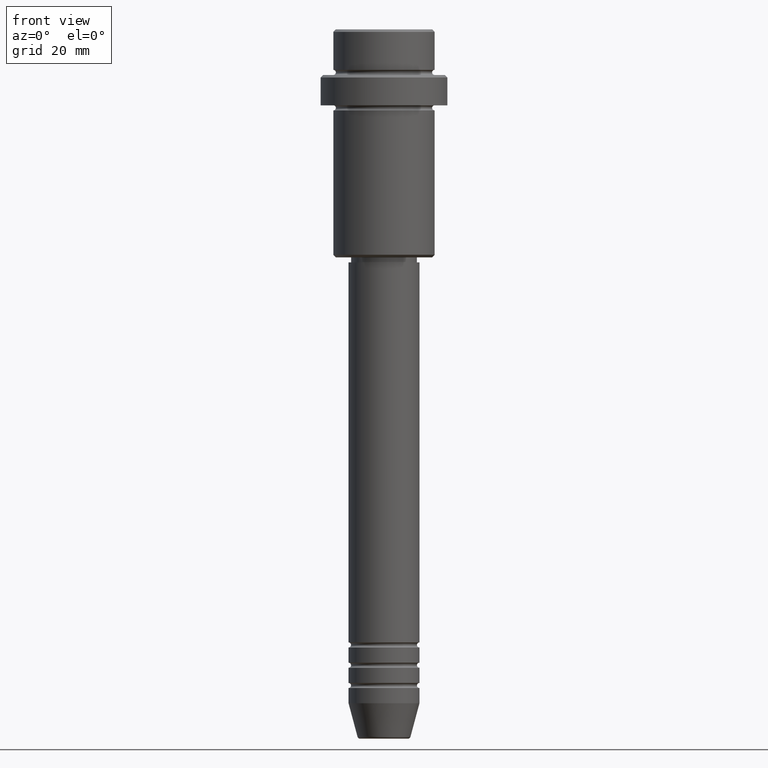
[diagram: clean part render]
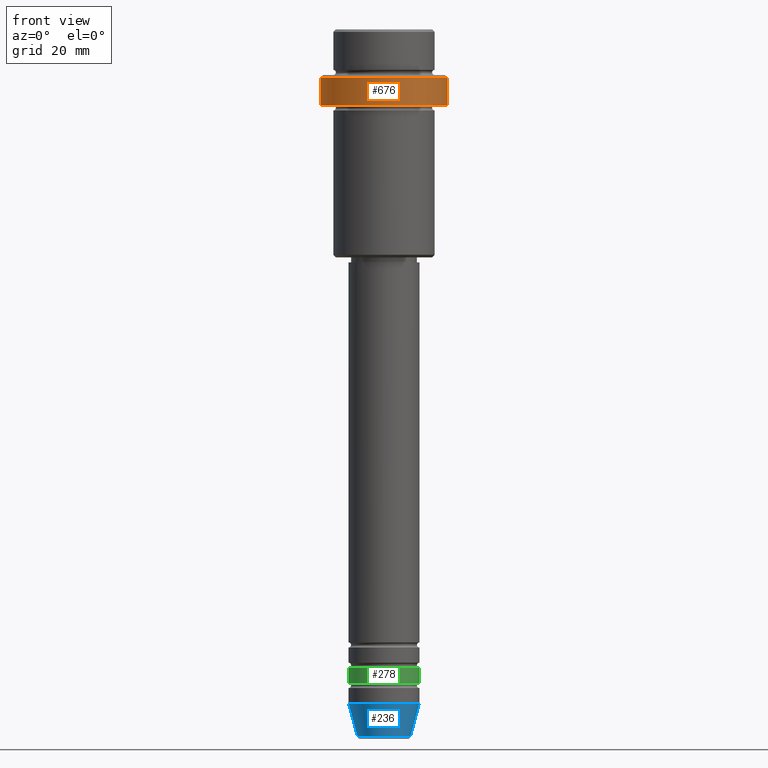
[diagram: same view with three faces highlighted in distinct colors, each labeled with its STEP entity id]
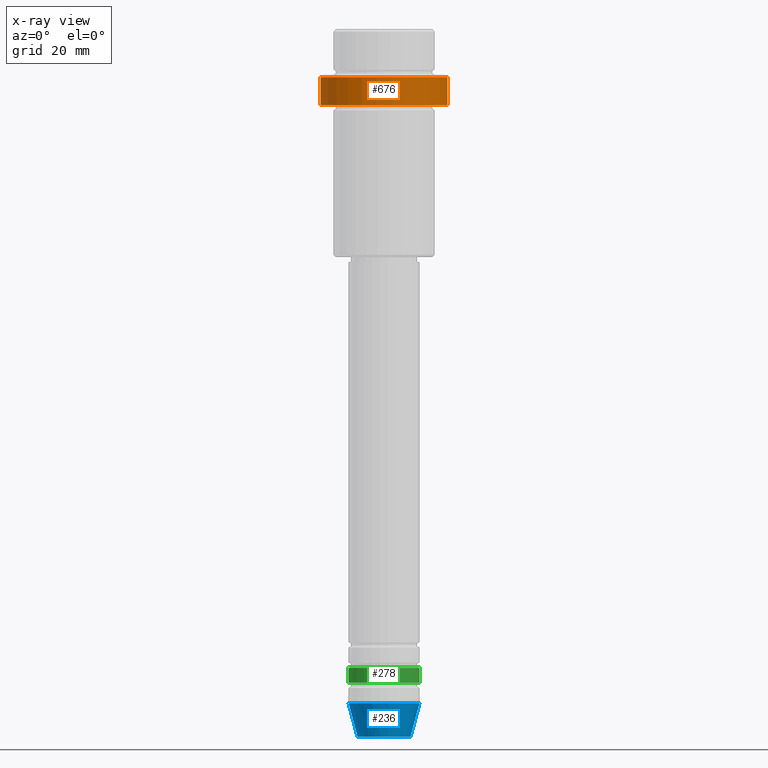
[diagram: x-ray of the same camera — body ghosted, the three highlighted faces saturated]
A machine part, front view with three faces highlighted in distinct colors.
The next image is the same camera in x-ray (body ghosted, the three faces saturated) — at least one of them is partly hidden behind the body in this view.
Their STEP definitions:

[orange] entity #676 — the highlighted cylindrical surface (partial cylindrical patch) has radius 12.5 mm, axis along (-0, -0, 1).
#21 = VERTEX_POINT ( 'NONE', #561 ) ;
#74 = CARTESIAN_POINT ( 'NONE',  ( -12.50000000000000000, 1.530808498934191521E-15, 0.000000000000000000 ) ) ;
#133 = DIRECTION ( 'NONE',  ( 0.000000000000000000, 0.000000000000000000, -1.000000000000000000 ) ) ;
#146 = ORIENTED_EDGE ( 'NONE', *, *, #505, .T. ) ;
#181 = ORIENTED_EDGE ( 'NONE', *, *, #310, .F. ) ;
#198 = CIRCLE ( 'NONE', #1269, 12.50000000000000000 ) ;
#205 = CARTESIAN_POINT ( 'NONE',  ( 12.50000000000000000, 0.000000000000000000, -9.500000000000031974 ) ) ;
#215 = EDGE_CURVE ( 'NONE', #621, #312, #397, .T. ) ;
#221 = VECTOR ( 'NONE', #1378, 1000.000000000000000 ) ;
#257 = FACE_OUTER_BOUND ( 'NONE', #915, .T. ) ;
#275 = DIRECTION ( 'NONE',  ( 1.000000000000000000, 0.000000000000000000, 0.000000000000000000 ) ) ;
#310 = EDGE_CURVE ( 'NONE', #21, #1114, #1079, .T. ) ;
#312 = VERTEX_POINT ( 'NONE', #205 ) ;
#397 = LINE ( 'NONE', #1230, #817 ) ;
#410 = EDGE_CURVE ( 'NONE', #312, #1114, #1082, .T. ) ;
#468 = CARTESIAN_POINT ( 'NONE',  ( 0.000000000000000000, 0.000000000000000000, 0.000000000000000000 ) ) ;
#483 = CARTESIAN_POINT ( 'NONE',  ( -12.50000000000000000, 1.530808498934191521E-15, -9.500000000000031974 ) ) ;
#505 = EDGE_CURVE ( 'NONE', #21, #621, #198, .T. ) ;
#561 = CARTESIAN_POINT ( 'NONE',  ( -12.50000000000000000, 1.530808498934191521E-15, -15.00000000000000000 ) ) ;
#592 = ORIENTED_EDGE ( 'NONE', *, *, #410, .T. ) ;
#610 = CYLINDRICAL_SURFACE ( 'NONE', #1199, 12.50000000000000000 ) ;
#621 = VERTEX_POINT ( 'NONE', #1229 ) ;
#651 = ORIENTED_EDGE ( 'NONE', *, *, #215, .T. ) ;
#676 = ADVANCED_FACE ( 'NONE', ( #257 ), #610, .T. ) ;
#762 = CARTESIAN_POINT ( 'NONE',  ( 0.000000000000000000, 0.000000000000000000, -15.00000000000000000 ) ) ;
#768 = DIRECTION ( 'NONE',  ( 1.000000000000000000, 0.000000000000000000, 0.000000000000000000 ) ) ;
#817 = VECTOR ( 'NONE', #1367, 1000.000000000000000 ) ;
#886 = CARTESIAN_POINT ( 'NONE',  ( 0.000000000000000000, 0.000000000000000000, -9.500000000000031974 ) ) ;
#915 = EDGE_LOOP ( 'NONE', ( #181, #146, #651, #592 ) ) ;
#1079 = LINE ( 'NONE', #74, #221 ) ;
#1082 = CIRCLE ( 'NONE', #1290, 12.50000000000000000 ) ;
#1091 = DIRECTION ( 'NONE',  ( -0.000000000000000000, -0.000000000000000000, 1.000000000000000000 ) ) ;
#1096 = DIRECTION ( 'NONE',  ( 1.000000000000000000, 0.000000000000000000, 0.000000000000000000 ) ) ;
#1114 = VERTEX_POINT ( 'NONE', #483 ) ;
#1199 = AXIS2_PLACEMENT_3D ( 'NONE', #468, #1252, #275 ) ;
#1229 = CARTESIAN_POINT ( 'NONE',  ( 12.50000000000000000, 0.000000000000000000, -15.00000000000000000 ) ) ;
#1230 = CARTESIAN_POINT ( 'NONE',  ( 12.50000000000000000, 0.000000000000000000, 0.000000000000000000 ) ) ;
#1252 = DIRECTION ( 'NONE',  ( -0.000000000000000000, -0.000000000000000000, 1.000000000000000000 ) ) ;
#1269 = AXIS2_PLACEMENT_3D ( 'NONE', #762, #1091, #1096 ) ;
#1290 = AXIS2_PLACEMENT_3D ( 'NONE', #886, #133, #768 ) ;
#1367 = DIRECTION ( 'NONE',  ( -0.000000000000000000, -0.000000000000000000, 1.000000000000000000 ) ) ;
#1378 = DIRECTION ( 'NONE',  ( -0.000000000000000000, -0.000000000000000000, 1.000000000000000000 ) ) ;

[blue] entity #236 — the highlighted conical surface has half-angle 15 deg.
#32 = FACE_OUTER_BOUND ( 'NONE', #763, .T. ) ;
#67 = CARTESIAN_POINT ( 'NONE',  ( 5.223655072137191269, 0.000000000000000000, -139.6294095225512706 ) ) ;
#123 = CARTESIAN_POINT ( 'NONE',  ( 7.000000000000000000, 0.000000000000000000, -133.0000000000000000 ) ) ;
#138 = ORIENTED_EDGE ( 'NONE', *, *, #537, .F. ) ;
#223 = VECTOR ( 'NONE', #781, 1000.000000000000000 ) ;
#226 = CIRCLE ( 'NONE', #928, 5.223655072137191269 ) ;
#236 = ADVANCED_FACE ( 'NONE', ( #32 ), #495, .T. ) ;
#244 = AXIS2_PLACEMENT_3D ( 'NONE', #871, #761, #652 ) ;
#258 = DIRECTION ( 'NONE',  ( 1.000000000000000000, 0.000000000000000000, 0.000000000000000000 ) ) ;
#306 = VERTEX_POINT ( 'NONE', #1179 ) ;
#348 = CARTESIAN_POINT ( 'NONE',  ( -7.000000000000000000, 8.572527594031473190E-16, -133.0000000000000000 ) ) ;
#389 = ORIENTED_EDGE ( 'NONE', *, *, #962, .F. ) ;
#457 = ORIENTED_EDGE ( 'NONE', *, *, #998, .T. ) ;
#480 = CARTESIAN_POINT ( 'NONE',  ( 0.000000000000000000, 0.000000000000000000, -133.0000000000000000 ) ) ;
#495 = CONICAL_SURFACE ( 'NONE', #655, 7.000000000000000000, 0.2617993877991501295 ) ;
#501 = CARTESIAN_POINT ( 'NONE',  ( 0.000000000000000000, 0.000000000000000000, -139.6294095225512706 ) ) ;
#537 = EDGE_CURVE ( 'NONE', #1149, #689, #671, .T. ) ;
#622 = DIRECTION ( 'NONE',  ( -0.000000000000000000, -0.000000000000000000, 1.000000000000000000 ) ) ;
#652 = DIRECTION ( 'NONE',  ( 1.000000000000000000, 0.000000000000000000, 0.000000000000000000 ) ) ;
#655 = AXIS2_PLACEMENT_3D ( 'NONE', #480, #1344, #258 ) ;
#658 = CIRCLE ( 'NONE', #244, 7.000000000000000000 ) ;
#671 = LINE ( 'NONE', #348, #723 ) ;
#684 = ORIENTED_EDGE ( 'NONE', *, *, #1286, .T. ) ;
#689 = VERTEX_POINT ( 'NONE', #897 ) ;
#723 = VECTOR ( 'NONE', #787, 1000.000000000000000 ) ;
#757 = VERTEX_POINT ( 'NONE', #67 ) ;
#761 = DIRECTION ( 'NONE',  ( -0.000000000000000000, -0.000000000000000000, 1.000000000000000000 ) ) ;
#763 = EDGE_LOOP ( 'NONE', ( #138, #684, #457, #389 ) ) ;
#781 = DIRECTION ( 'NONE',  ( 0.2588190451025214056, 0.000000000000000000, 0.9659258262890680902 ) ) ;
#787 = DIRECTION ( 'NONE',  ( -0.2588190451025214056, 3.169619151431772953E-17, 0.9659258262890680902 ) ) ;
#871 = CARTESIAN_POINT ( 'NONE',  ( 0.000000000000000000, 0.000000000000000000, -133.0000000000000000 ) ) ;
#897 = CARTESIAN_POINT ( 'NONE',  ( -7.000000000000000000, 8.572527594031473190E-16, -133.0000000000000000 ) ) ;
#928 = AXIS2_PLACEMENT_3D ( 'NONE', #501, #622, #1307 ) ;
#962 = EDGE_CURVE ( 'NONE', #689, #306, #658, .T. ) ;
#998 = EDGE_CURVE ( 'NONE', #757, #306, #1320, .T. ) ;
#1149 = VERTEX_POINT ( 'NONE', #1362 ) ;
#1179 = CARTESIAN_POINT ( 'NONE',  ( 7.000000000000000000, 0.000000000000000000, -133.0000000000000000 ) ) ;
#1286 = EDGE_CURVE ( 'NONE', #1149, #757, #226, .T. ) ;
#1307 = DIRECTION ( 'NONE',  ( 1.000000000000000000, 0.000000000000000000, 0.000000000000000000 ) ) ;
#1320 = LINE ( 'NONE', #123, #223 ) ;
#1344 = DIRECTION ( 'NONE',  ( -0.000000000000000000, -0.000000000000000000, 1.000000000000000000 ) ) ;
#1362 = CARTESIAN_POINT ( 'NONE',  ( -5.223655072137191269, 7.484830028987061160E-16, -139.6294095225512706 ) ) ;

[green] entity #278 — the highlighted cylindrical surface (edge-blend (fillet) strip) has radius 7 mm, axis along (-0, -0, 1).
#29 = VERTEX_POINT ( 'NONE', #1008 ) ;
#33 = CIRCLE ( 'NONE', #1045, 7.000000000000000000 ) ;
#43 = EDGE_CURVE ( 'NONE', #1044, #29, #261, .T. ) ;
#54 = CARTESIAN_POINT ( 'NONE',  ( 7.000000000000000000, 0.000000000000000000, 0.000000000000000000 ) ) ;
#129 = ORIENTED_EDGE ( 'NONE', *, *, #1253, .F. ) ;
#229 = DIRECTION ( 'NONE',  ( -0.000000000000000000, -0.000000000000000000, 1.000000000000000000 ) ) ;
#261 = CIRCLE ( 'NONE', #1036, 7.000000000000000000 ) ;
#278 = ADVANCED_FACE ( 'NONE', ( #1281 ), #1287, .T. ) ;
#295 = ORIENTED_EDGE ( 'NONE', *, *, #704, .T. ) ;
#339 = CARTESIAN_POINT ( 'NONE',  ( 7.000000000000000000, 0.000000000000000000, -125.9999999999998863 ) ) ;
#395 = ORIENTED_EDGE ( 'NONE', *, *, #43, .T. ) ;
#408 = EDGE_LOOP ( 'NONE', ( #476, #395, #295, #129 ) ) ;
#416 = CARTESIAN_POINT ( 'NONE',  ( 0.000000000000000000, 0.000000000000000000, -125.9999999999998863 ) ) ;
#476 = ORIENTED_EDGE ( 'NONE', *, *, #1391, .F. ) ;
#507 = VERTEX_POINT ( 'NONE', #339 ) ;
#526 = CARTESIAN_POINT ( 'NONE',  ( -7.000000000000000000, 8.572527594031473190E-16, -125.9999999999998863 ) ) ;
#557 = LINE ( 'NONE', #1203, #1223 ) ;
#616 = DIRECTION ( 'NONE',  ( 1.000000000000000000, 0.000000000000000000, 0.000000000000000000 ) ) ;
#704 = EDGE_CURVE ( 'NONE', #29, #507, #798, .T. ) ;
#712 = VERTEX_POINT ( 'NONE', #526 ) ;
#740 = DIRECTION ( 'NONE',  ( 1.000000000000000000, 0.000000000000000000, 0.000000000000000000 ) ) ;
#789 = DIRECTION ( 'NONE',  ( 1.000000000000000000, 0.000000000000000000, 0.000000000000000000 ) ) ;
#798 = LINE ( 'NONE', #54, #1085 ) ;
#854 = CARTESIAN_POINT ( 'NONE',  ( 0.000000000000000000, 0.000000000000000000, 0.000000000000000000 ) ) ;
#929 = DIRECTION ( 'NONE',  ( -0.000000000000000000, -0.000000000000000000, 1.000000000000000000 ) ) ;
#961 = DIRECTION ( 'NONE',  ( -0.000000000000000000, -0.000000000000000000, 1.000000000000000000 ) ) ;
#1008 = CARTESIAN_POINT ( 'NONE',  ( 7.000000000000000000, 0.000000000000000000, -128.9999999999998863 ) ) ;
#1036 = AXIS2_PLACEMENT_3D ( 'NONE', #1212, #1327, #789 ) ;
#1039 = AXIS2_PLACEMENT_3D ( 'NONE', #854, #1409, #740 ) ;
#1044 = VERTEX_POINT ( 'NONE', #1347 ) ;
#1045 = AXIS2_PLACEMENT_3D ( 'NONE', #416, #961, #616 ) ;
#1085 = VECTOR ( 'NONE', #929, 1000.000000000000000 ) ;
#1203 = CARTESIAN_POINT ( 'NONE',  ( -7.000000000000000000, 8.572527594031473190E-16, 0.000000000000000000 ) ) ;
#1212 = CARTESIAN_POINT ( 'NONE',  ( 0.000000000000000000, 0.000000000000000000, -128.9999999999998863 ) ) ;
#1223 = VECTOR ( 'NONE', #229, 1000.000000000000000 ) ;
#1253 = EDGE_CURVE ( 'NONE', #712, #507, #33, .T. ) ;
#1281 = FACE_OUTER_BOUND ( 'NONE', #408, .T. ) ;
#1287 = CYLINDRICAL_SURFACE ( 'NONE', #1039, 7.000000000000000000 ) ;
#1327 = DIRECTION ( 'NONE',  ( -0.000000000000000000, -0.000000000000000000, 1.000000000000000000 ) ) ;
#1347 = CARTESIAN_POINT ( 'NONE',  ( -7.000000000000000000, 8.572527594031473190E-16, -128.9999999999998863 ) ) ;
#1391 = EDGE_CURVE ( 'NONE', #1044, #712, #557, .T. ) ;
#1409 = DIRECTION ( 'NONE',  ( -0.000000000000000000, -0.000000000000000000, 1.000000000000000000 ) ) ;